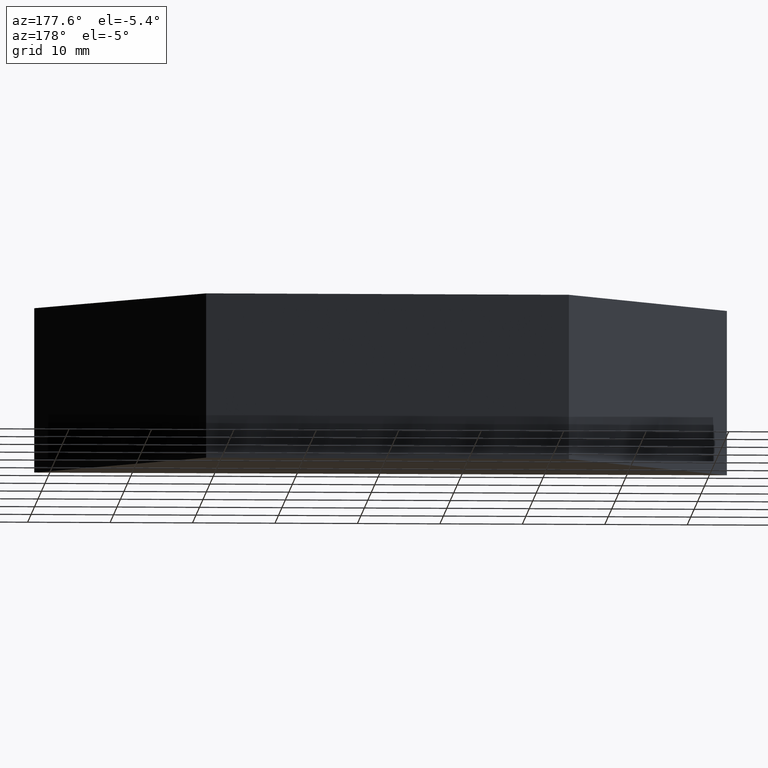
[diagram: clean part render]
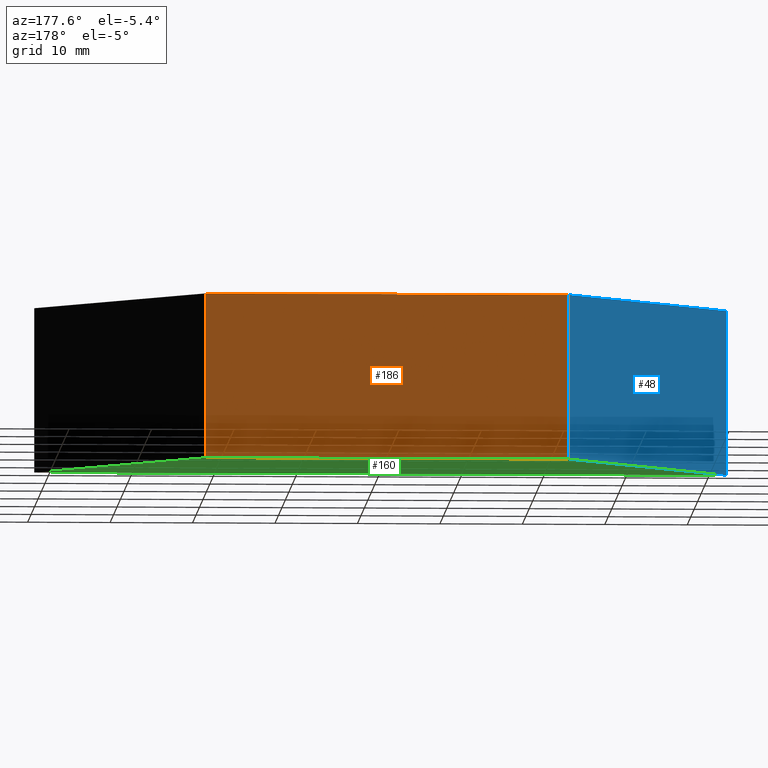
[diagram: same view with three faces highlighted in distinct colors, each labeled with its STEP entity id]
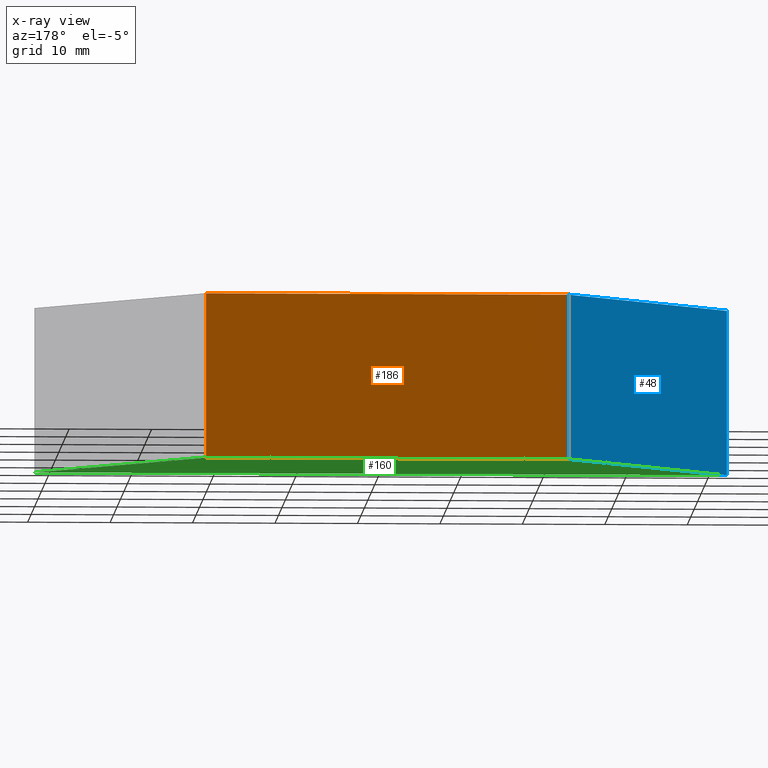
[diagram: x-ray of the same camera — body ghosted, the three highlighted faces saturated]
A machine part, auxiliary view with three faces highlighted in distinct colors.
The next image is the same camera in x-ray (body ghosted, the three faces saturated) — at least one of them is partly hidden behind the body in this view.
Their STEP definitions:

[orange] entity #186 — the highlighted planar face has unit normal (0, -1, 0).
#1 = EDGE_CURVE ( 'NONE', #22, #148, #169, .T. ) ;
#9 = ORIENTED_EDGE ( 'NONE', *, *, #129, .F. ) ;
#14 = DIRECTION ( 'NONE',  ( -1.000000000000000000, -0.000000000000000000, -0.000000000000000000 ) ) ;
#22 = VERTEX_POINT ( 'NONE', #211 ) ;
#37 = CARTESIAN_POINT ( 'NONE',  ( 97.28703400351744790, 119.8442076376689727, 20.00000000000000000 ) ) ;
#43 = PLANE ( 'NONE',  #185 ) ;
#58 = CARTESIAN_POINT ( 'NONE',  ( 97.28703400351744790, 119.8442076376689727, 20.00000000000000000 ) ) ;
#62 = DIRECTION ( 'NONE',  ( -1.000000000000000000, -0.000000000000000000, -0.000000000000000000 ) ) ;
#64 = VECTOR ( 'NONE', #14, 1000.000000000000000 ) ;
#94 = EDGE_CURVE ( 'NONE', #22, #161, #102, .T. ) ;
#100 = ORIENTED_EDGE ( 'NONE', *, *, #144, .T. ) ;
#101 = LINE ( 'NONE', #221, #206 ) ;
#102 = LINE ( 'NONE', #171, #64 ) ;
#110 = VECTOR ( 'NONE', #62, 1000.000000000000000 ) ;
#113 = DIRECTION ( 'NONE',  ( -0.000000000000000000, -0.000000000000000000, -1.000000000000000000 ) ) ;
#114 = EDGE_LOOP ( 'NONE', ( #100, #9, #150, #202 ) ) ;
#129 = EDGE_CURVE ( 'NONE', #161, #230, #101, .T. ) ;
#132 = CARTESIAN_POINT ( 'NONE',  ( 141.2870676035172437, 119.8442076376689727, 20.00000000000000000 ) ) ;
#144 = EDGE_CURVE ( 'NONE', #148, #230, #164, .T. ) ;
#147 = CARTESIAN_POINT ( 'NONE',  ( 97.28703400351744790, 119.8442076376689727, 0.000000000000000000 ) ) ;
#148 = VERTEX_POINT ( 'NONE', #183 ) ;
#150 = ORIENTED_EDGE ( 'NONE', *, *, #94, .F. ) ;
#161 = VERTEX_POINT ( 'NONE', #58 ) ;
#164 = LINE ( 'NONE', #204, #110 ) ;
#169 = LINE ( 'NONE', #132, #178 ) ;
#171 = CARTESIAN_POINT ( 'NONE',  ( 97.28703400351744790, 119.8442076376689727, 20.00000000000000000 ) ) ;
#173 = DIRECTION ( 'NONE',  ( -0.000000000000000000, -0.000000000000000000, -1.000000000000000000 ) ) ;
#178 = VECTOR ( 'NONE', #173, 1000.000000000000000 ) ;
#183 = CARTESIAN_POINT ( 'NONE',  ( 141.2870676035172437, 119.8442076376689727, 0.000000000000000000 ) ) ;
#185 = AXIS2_PLACEMENT_3D ( 'NONE', #37, #207, #223 ) ;
#186 = ADVANCED_FACE ( 'NONE', ( #227 ), #43, .F. ) ;
#202 = ORIENTED_EDGE ( 'NONE', *, *, #1, .T. ) ;
#204 = CARTESIAN_POINT ( 'NONE',  ( 97.28703400351744790, 119.8442076376689727, 0.000000000000000000 ) ) ;
#206 = VECTOR ( 'NONE', #113, 1000.000000000000000 ) ;
#207 = DIRECTION ( 'NONE',  ( 0.000000000000000000, -1.000000000000000000, 0.000000000000000000 ) ) ;
#211 = CARTESIAN_POINT ( 'NONE',  ( 141.2870676035172437, 119.8442076376689727, 20.00000000000000000 ) ) ;
#221 = CARTESIAN_POINT ( 'NONE',  ( 97.28703400351744790, 119.8442076376689727, 20.00000000000000000 ) ) ;
#223 = DIRECTION ( 'NONE',  ( 0.000000000000000000, -0.000000000000000000, -1.000000000000000000 ) ) ;
#227 = FACE_OUTER_BOUND ( 'NONE', #114, .T. ) ;
#230 = VERTEX_POINT ( 'NONE', #147 ) ;

[blue] entity #48 — the highlighted planar face has unit normal (0.7071, -0.7071, 0).
#2 = AXIS2_PLACEMENT_3D ( 'NONE', #210, #122, #184 ) ;
#10 = CARTESIAN_POINT ( 'NONE',  ( 77.28703400351744790, 99.84420763766895845, 20.00000000000000000 ) ) ;
#36 = PLANE ( 'NONE',  #2 ) ;
#40 = DIRECTION ( 'NONE',  ( -0.000000000000000000, -0.000000000000000000, -1.000000000000000000 ) ) ;
#48 = ADVANCED_FACE ( 'NONE', ( #194 ), #36, .F. ) ;
#58 = CARTESIAN_POINT ( 'NONE',  ( 97.28703400351744790, 119.8442076376689727, 20.00000000000000000 ) ) ;
#73 = ORIENTED_EDGE ( 'NONE', *, *, #115, .T. ) ;
#81 = CARTESIAN_POINT ( 'NONE',  ( 77.28703400351744790, 99.84420763766895845, 0.000000000000000000 ) ) ;
#83 = LINE ( 'NONE', #131, #116 ) ;
#97 = EDGE_LOOP ( 'NONE', ( #73, #168, #134, #145 ) ) ;
#99 = CARTESIAN_POINT ( 'NONE',  ( 77.28703400351744790, 99.84420763766895845, 0.000000000000000000 ) ) ;
#101 = LINE ( 'NONE', #221, #206 ) ;
#108 = EDGE_CURVE ( 'NONE', #161, #165, #174, .T. ) ;
#113 = DIRECTION ( 'NONE',  ( -0.000000000000000000, -0.000000000000000000, -1.000000000000000000 ) ) ;
#115 = EDGE_CURVE ( 'NONE', #230, #152, #127, .T. ) ;
#116 = VECTOR ( 'NONE', #40, 1000.000000000000000 ) ;
#122 = DIRECTION ( 'NONE',  ( 0.7071067811865475727, -0.7071067811865475727, 0.000000000000000000 ) ) ;
#127 = LINE ( 'NONE', #81, #175 ) ;
#129 = EDGE_CURVE ( 'NONE', #161, #230, #101, .T. ) ;
#131 = CARTESIAN_POINT ( 'NONE',  ( 77.28703400351744790, 99.84420763766895845, 20.00000000000000000 ) ) ;
#133 = DIRECTION ( 'NONE',  ( -0.7071067811865474617, -0.7071067811865474617, -0.000000000000000000 ) ) ;
#134 = ORIENTED_EDGE ( 'NONE', *, *, #108, .F. ) ;
#142 = EDGE_CURVE ( 'NONE', #165, #152, #83, .T. ) ;
#145 = ORIENTED_EDGE ( 'NONE', *, *, #129, .T. ) ;
#147 = CARTESIAN_POINT ( 'NONE',  ( 97.28703400351744790, 119.8442076376689727, 0.000000000000000000 ) ) ;
#149 = DIRECTION ( 'NONE',  ( -0.7071067811865474617, -0.7071067811865474617, -0.000000000000000000 ) ) ;
#152 = VERTEX_POINT ( 'NONE', #99 ) ;
#156 = CARTESIAN_POINT ( 'NONE',  ( 77.28703400351744790, 99.84420763766895845, 20.00000000000000000 ) ) ;
#161 = VERTEX_POINT ( 'NONE', #58 ) ;
#163 = VECTOR ( 'NONE', #133, 1000.000000000000114 ) ;
#165 = VERTEX_POINT ( 'NONE', #10 ) ;
#168 = ORIENTED_EDGE ( 'NONE', *, *, #142, .F. ) ;
#174 = LINE ( 'NONE', #156, #163 ) ;
#175 = VECTOR ( 'NONE', #149, 1000.000000000000114 ) ;
#184 = DIRECTION ( 'NONE',  ( 0.7071067811865474617, 0.7071067811865474617, 0.000000000000000000 ) ) ;
#194 = FACE_OUTER_BOUND ( 'NONE', #97, .T. ) ;
#206 = VECTOR ( 'NONE', #113, 1000.000000000000000 ) ;
#210 = CARTESIAN_POINT ( 'NONE',  ( 77.28703400351744790, 99.84420763766895845, 20.00000000000000000 ) ) ;
#221 = CARTESIAN_POINT ( 'NONE',  ( 97.28703400351744790, 119.8442076376689727, 20.00000000000000000 ) ) ;
#230 = VERTEX_POINT ( 'NONE', #147 ) ;

[green] entity #160 — the highlighted planar face has unit normal (0, -0, 1).
#4 = CARTESIAN_POINT ( 'NONE',  ( 0.000000000000000000, 0.000000000000000000, 0.000000000000000000 ) ) ;
#6 = ORIENTED_EDGE ( 'NONE', *, *, #28, .F. ) ;
#8 = DIRECTION ( 'NONE',  ( 0.000000000000000000, -0.000000000000000000, 1.000000000000000000 ) ) ;
#23 = VERTEX_POINT ( 'NONE', #136 ) ;
#26 = EDGE_LOOP ( 'NONE', ( #66, #228, #6, #124 ) ) ;
#28 = EDGE_CURVE ( 'NONE', #23, #148, #188, .T. ) ;
#38 = AXIS2_PLACEMENT_3D ( 'NONE', #4, #8, #135 ) ;
#46 = DIRECTION ( 'NONE',  ( -0.7071067811865539010, 0.7071067811865411334, 0.000000000000000000 ) ) ;
#60 = FACE_OUTER_BOUND ( 'NONE', #26, .T. ) ;
#62 = DIRECTION ( 'NONE',  ( -1.000000000000000000, -0.000000000000000000, -0.000000000000000000 ) ) ;
#66 = ORIENTED_EDGE ( 'NONE', *, *, #115, .F. ) ;
#81 = CARTESIAN_POINT ( 'NONE',  ( 77.28703400351744790, 99.84420763766895845, 0.000000000000000000 ) ) ;
#88 = CARTESIAN_POINT ( 'NONE',  ( 77.28703400351744790, 99.84420763766895845, 0.000000000000000000 ) ) ;
#99 = CARTESIAN_POINT ( 'NONE',  ( 77.28703400351744790, 99.84420763766895845, 0.000000000000000000 ) ) ;
#104 = EDGE_CURVE ( 'NONE', #152, #23, #232, .T. ) ;
#106 = DIRECTION ( 'NONE',  ( 1.000000000000000000, -1.652116935321609837E-16, 0.000000000000000000 ) ) ;
#110 = VECTOR ( 'NONE', #62, 1000.000000000000000 ) ;
#111 = VECTOR ( 'NONE', #46, 1000.000000000000000 ) ;
#115 = EDGE_CURVE ( 'NONE', #230, #152, #127, .T. ) ;
#124 = ORIENTED_EDGE ( 'NONE', *, *, #104, .F. ) ;
#127 = LINE ( 'NONE', #81, #175 ) ;
#135 = DIRECTION ( 'NONE',  ( 1.000000000000000000, 0.000000000000000000, -0.000000000000000000 ) ) ;
#136 = CARTESIAN_POINT ( 'NONE',  ( 161.2870676035176416, 99.84420763766894424, 0.000000000000000000 ) ) ;
#144 = EDGE_CURVE ( 'NONE', #148, #230, #164, .T. ) ;
#147 = CARTESIAN_POINT ( 'NONE',  ( 97.28703400351744790, 119.8442076376689727, 0.000000000000000000 ) ) ;
#148 = VERTEX_POINT ( 'NONE', #183 ) ;
#149 = DIRECTION ( 'NONE',  ( -0.7071067811865474617, -0.7071067811865474617, -0.000000000000000000 ) ) ;
#152 = VERTEX_POINT ( 'NONE', #99 ) ;
#160 = ADVANCED_FACE ( 'NONE', ( #60 ), #209, .F. ) ;
#164 = LINE ( 'NONE', #204, #110 ) ;
#175 = VECTOR ( 'NONE', #149, 1000.000000000000114 ) ;
#183 = CARTESIAN_POINT ( 'NONE',  ( 141.2870676035172437, 119.8442076376689727, 0.000000000000000000 ) ) ;
#188 = LINE ( 'NONE', #192, #111 ) ;
#192 = CARTESIAN_POINT ( 'NONE',  ( 161.2870676035176416, 99.84420763766894424, 0.000000000000000000 ) ) ;
#197 = VECTOR ( 'NONE', #106, 1000.000000000000000 ) ;
#204 = CARTESIAN_POINT ( 'NONE',  ( 97.28703400351744790, 119.8442076376689727, 0.000000000000000000 ) ) ;
#209 = PLANE ( 'NONE',  #38 ) ;
#228 = ORIENTED_EDGE ( 'NONE', *, *, #144, .F. ) ;
#230 = VERTEX_POINT ( 'NONE', #147 ) ;
#232 = LINE ( 'NONE', #88, #197 ) ;